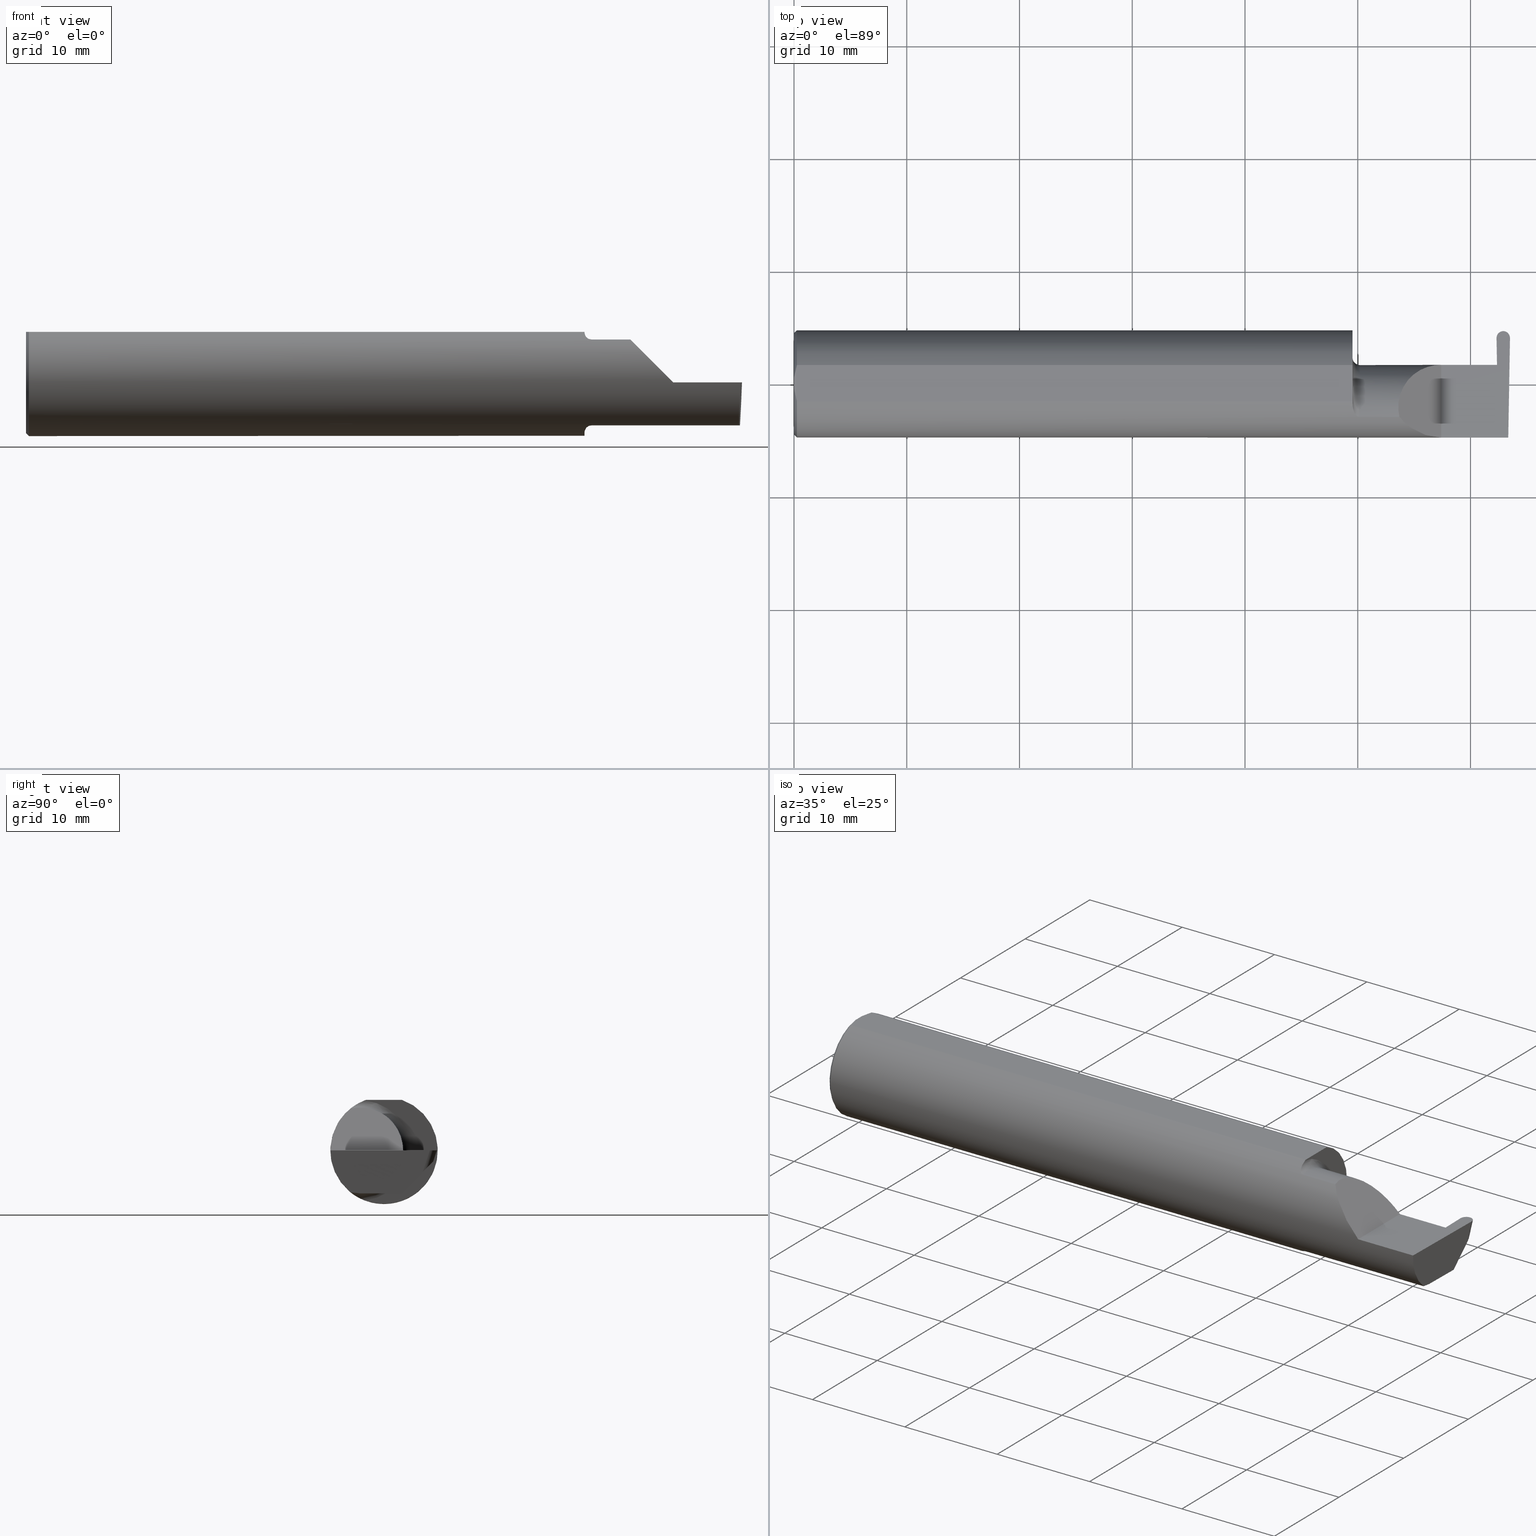
[diagram: canonical four-view strip — front | top / right | iso, engineering-drawing reading convention]
A machine part, canonical four-view strip (front | top / right | iso — engineering-drawing reading convention). The complete STEP part file that produces these views, byte-faithful:
ISO-10303-21;
HEADER;
FILE_DESCRIPTION (( 'STEP AP203' ),
    '1' );
FILE_NAME ('222122-GFR046-8.STEP',
    '2024-06-21T22:57:42',
    ( '' ),
    ( '' ),
    'SwSTEP 2.0',
    'SolidWorks 2022',
    '' );
FILE_SCHEMA (( 'CONFIG_CONTROL_DESIGN' ));
ENDSEC;

DATA;
#1 = VERTEX_POINT ( 'NONE', #477 ) ;
#2 = CARTESIAN_POINT ( 'NONE',  ( 2.450725024758243720, 0.2365161755066116367, 0.02621312396346280743 ) ) ;
#3 = ORIENTED_EDGE ( 'NONE', *, *, #581, .T. ) ;
#4 = LINE ( 'NONE', #442, #279 ) ;
#5 = EDGE_CURVE ( 'NONE', #386, #101, #523, .T. ) ;
#6 = FACE_OUTER_BOUND ( 'NONE', #64, .T. ) ;
#7 = CARTESIAN_POINT ( 'NONE',  ( 2.260000000000000231, 0.06665000000000001479, 6.735557395310446214E-17 ) ) ;
#8 = PRODUCT_DEFINITION ( 'UNKNOWN', '', #44, #330 ) ;
#9 = DIRECTION ( 'NONE',  ( -0.000000000000000000, 1.000000000000000000, -0.000000000000000000 ) ) ;
#10 = VERTEX_POINT ( 'NONE', #533 ) ;
#11 = CARTESIAN_POINT ( 'NONE',  ( 2.459895087900160870, 0.06145200698433272296, -0.1488510445587935549 ) ) ;
#12 = EDGE_CURVE ( 'NONE', #83, #173, #40, .T. ) ;
#13 = COORDINATED_UNIVERSAL_TIME_OFFSET ( 8, 0, .BEHIND. ) ;
#14 = DIRECTION ( 'NONE',  ( 0.000000000000000000, -1.000000000000000000, 0.000000000000000000 ) ) ;
#15 = ORIENTED_EDGE ( 'NONE', *, *, #369, .F. ) ;
#16 = AXIS2_PLACEMENT_3D ( 'NONE', #31, #24, #188 ) ;
#17 = B_SPLINE_CURVE_WITH_KNOTS ( 'NONE', 3,
 ( #687, #192, #413, #580, #301, #636, #397, #141, #358, #405, #531, #76 ),
 .UNSPECIFIED., .F., .F.,
 ( 4, 2, 2, 2, 2, 4 ),
 ( 4.423516731080767705E-05, 0.0004615475116586703792, 0.0008788598560065330814, 0.001296172200354395784, 0.001504828372528326267, 0.001713484544702256968 ),
 .UNSPECIFIED. ) ;
#18 = VECTOR ( 'NONE', #570, 39.37007874015748143 ) ;
#19 = LOCAL_TIME ( 15, 57, 42.00000000000000000, #343 ) ;
#20 = ORIENTED_EDGE ( 'NONE', *, *, #12, .F. ) ;
#21 = PERSON_AND_ORGANIZATION ( #172, #371 ) ;
#22 = CARTESIAN_POINT ( 'NONE',  ( 2.260000000000000231, -0.2500000000000000555, 2.939152317953647352E-17 ) ) ;
#23 = ORIENTED_EDGE ( 'NONE', *, *, #430, .F. ) ;
#24 = DIRECTION ( 'NONE',  ( 1.000000000000000000, 3.394713289407038742E-17, 0.000000000000000000 ) ) ;
#25 = CARTESIAN_POINT ( 'NONE',  ( 2.476480000000000459, 0.1722500154617881696, -0.03805303608136140214 ) ) ;
#26 = EDGE_CURVE ( 'NONE', #470, #412, #154, .T. ) ;
#27 = VERTEX_POINT ( 'NONE', #487 ) ;
#28 = CARTESIAN_POINT ( 'NONE',  ( 2.498023799314527338, 0.1561213079040834895, -0.05418174363906626961 ) ) ;
#29 = AXIS2_PLACEMENT_3D ( 'NONE', #660, #497, #556 ) ;
#30 = VERTEX_POINT ( 'NONE', #363 ) ;
#31 = CARTESIAN_POINT ( 'NONE',  ( 1.949999999999999956, 0.000000000000000000, 0.000000000000000000 ) ) ;
#32 = CARTESIAN_POINT ( 'NONE',  ( 0.009999999999999346217, 0.06325108694718235836, 0.1763499999999999235 ) ) ;
#33 = CARTESIAN_POINT ( 'NONE',  ( 2.472512750841366902, 0.1918129394110904828, 0.09809285817454171941 ) ) ;
#34 = EDGE_CURVE ( 'NONE', #280, #629, #293, .T. ) ;
#35 = ORIENTED_EDGE ( 'NONE', *, *, #137, .F. ) ;
#36 = CARTESIAN_POINT ( 'NONE',  ( 2.460115337567889249, -0.08334999999999999354, -0.1500000000000000500 ) ) ;
#37 = CYLINDRICAL_SURFACE ( 'NONE', #110, 0.02350000000000000352 ) ;
#38 = VERTEX_POINT ( 'NONE', #310 ) ;
#39 = DIRECTION ( 'NONE',  ( -1.000000000000000000, -3.394713289407038742E-17, -0.000000000000000000 ) ) ;
#40 = LINE ( 'NONE', #90, #558 ) ;
#41 = DIRECTION ( 'NONE',  ( -0.7071067811865441310, 0.000000000000000000, -0.7071067811865510144 ) ) ;
#42 = CONICAL_SURFACE ( 'NONE', #627, 0.1773500000000005072, 0.7853981633974551624 ) ;
#43 = CARTESIAN_POINT ( 'NONE',  ( 2.460115337567889249, -0.08334999999999999354, -0.1500000000000000500 ) ) ;
#44 = PRODUCT_DEFINITION_FORMATION_WITH_SPECIFIED_SOURCE ( 'ANY', '', #482, .NOT_KNOWN. ) ;
#45 = DIRECTION ( 'NONE',  ( 1.000000000000000000, 0.000000000000000000, 0.000000000000000000 ) ) ;
#46 = EDGE_CURVE ( 'NONE', #264, #173, #151, .T. ) ;
#47 = B_SPLINE_CURVE_WITH_KNOTS ( 'NONE', 3,
 ( #415, #309, #241, #425 ),
 .UNSPECIFIED., .F., .F.,
 ( 4, 4 ),
 ( 0.009771445421851449736, 0.01092787937989102981 ),
 .UNSPECIFIED. ) ;
#48 = LINE ( 'NONE', #211, #199 ) ;
#49 = DIRECTION ( 'NONE',  ( -3.394713289407038742E-17, 1.000000000000000000, 0.000000000000000000 ) ) ;
#50 = CC_DESIGN_PERSON_AND_ORGANIZATION_ASSIGNMENT ( #21, #568, ( #8 ) ) ;
#51 = VERTEX_POINT ( 'NONE', #428 ) ;
#52 = LINE ( 'NONE', #431, #229 ) ;
#53 = DIRECTION ( 'NONE',  ( -0.01745240643727575397, -0.9998476951563912696, 0.000000000000000000 ) ) ;
#54 = CARTESIAN_POINT ( 'NONE',  ( 2.447424076630286827, 0.06652820251299108867, -0.003487823687207497643 ) ) ;
#55 = DIRECTION ( 'NONE',  ( -1.000000000000000000, 0.000000000000000000, 1.224646799147353947E-16 ) ) ;
#56 = VECTOR ( 'NONE', #521, 39.37007874015748854 ) ;
#57 = CARTESIAN_POINT ( 'NONE',  ( 2.113883229301068312, -0.1172600179964003175, 0.1461167706989304760 ) ) ;
#58 = CARTESIAN_POINT ( 'NONE',  ( 2.499996417790078862, 0.1607195194005952565, 0.000000000000000000 ) ) ;
#59 = EDGE_CURVE ( 'NONE', #396, #93, #319, .T. ) ;
#60 = ORIENTED_EDGE ( 'NONE', *, *, #461, .T. ) ;
#61 = CARTESIAN_POINT ( 'NONE',  ( 1.949999999999999956, 0.1873499999999999055, 0.000000000000000000 ) ) ;
#62 = DIRECTION ( 'NONE',  ( 3.394713289407038742E-17, -1.000000000000000000, 0.000000000000000000 ) ) ;
#63 = CARTESIAN_POINT ( 'NONE',  ( 2.452979680742863433, 0.1597972350660649132, 0.000000000000000000 ) ) ;
#64 = EDGE_LOOP ( 'NONE', ( #116, #455, #620, #403, #510, #384 ) ) ;
#65 = CARTESIAN_POINT ( 'NONE',  ( 2.090221225029926355, -0.01530148607434139371, 0.1697787749700724880 ) ) ;
#66 = ORIENTED_EDGE ( 'NONE', *, *, #317, .F. ) ;
#67 = CARTESIAN_POINT ( 'NONE',  ( 2.499991330919623778, 0.1598853660763216722, 0.0002712393593816879249 ) ) ;
#68 = AXIS2_PLACEMENT_3D ( 'NONE', #641, #41, #249 ) ;
#69 = EDGE_CURVE ( 'NONE', #126, #267, #366, .T. ) ;
#70 = CARTESIAN_POINT ( 'NONE',  ( 1.951843912362378086, -0.08846956905169084395, -0.1652353808078972919 ) ) ;
#71 = EDGE_CURVE ( 'NONE', #598, #27, #410, .T. ) ;
#72 = ORIENTED_EDGE ( 'NONE', *, *, #605, .T. ) ;
#73 = ORIENTED_EDGE ( 'NONE', *, *, #602, .F. ) ;
#74 = PERSON_AND_ORGANIZATION ( #172, #371 ) ;
#75 = DIRECTION ( 'NONE',  ( 0.000000000000000000, 0.000000000000000000, -1.000000000000000000 ) ) ;
#76 = CARTESIAN_POINT ( 'NONE',  ( 1.974999999999999867, -0.1172600179964006506, 0.1461167706989304205 ) ) ;
#77 =( BOUNDED_CURVE ( )  B_SPLINE_CURVE ( 3, ( #184, #630, #132, #520 ),
 .UNSPECIFIED., .F., .F. ) 
 B_SPLINE_CURVE_WITH_KNOTS ( ( 4, 4 ),
 ( 1.570796326794879016, 1.624635715067310082 ),
 .UNSPECIFIED. ) 
 CURVE ( )  GEOMETRIC_REPRESENTATION_ITEM ( )  RATIONAL_B_SPLINE_CURVE ( ( 1.000000000000000000, 0.9997584579429215079, 0.9997584579429215079, 1.000000000000000000 ) ) 
 REPRESENTATION_ITEM ( '' )  );
#78 = EDGE_LOOP ( 'NONE', ( #86, #72, #663, #23, #496, #623, #530, #514, #292 ) ) ;
#79 = CALENDAR_DATE ( 2024, 21, 6 ) ;
#80 = EDGE_CURVE ( 'NONE', #183, #272, #476, .T. ) ;
#81 = PLANE ( 'NONE',  #432 ) ;
#82 = CARTESIAN_POINT ( 'NONE',  ( 1.974999999999999867, -0.1172600179964006090, -0.1461167706989303927 ) ) ;
#83 = VERTEX_POINT ( 'NONE', #11 ) ;
#84 = LINE ( 'NONE', #22, #697 ) ;
#85 = ORIENTED_EDGE ( 'NONE', *, *, #158, .T. ) ;
#86 = ORIENTED_EDGE ( 'NONE', *, *, #500, .F. ) ;
#87 = CARTESIAN_POINT ( 'NONE',  ( 0.000000000000000000, 0.000000000000000000, 0.000000000000000000 ) ) ;
#88 = EDGE_CURVE ( 'NONE', #651, #386, #559, .T. ) ;
#89 = CIRCLE ( 'NONE', #144, 0.1500000000000000500 ) ;
#90 = CARTESIAN_POINT ( 'NONE',  ( 2.454605571778825102, 0.06664999999999998703, 0.000000000000000000 ) ) ;
#91 = CARTESIAN_POINT ( 'NONE',  ( 2.113883229301068312, -0.1172600179964003175, 0.1461167706989304760 ) ) ;
#92 = DIRECTION ( 'NONE',  ( 0.000000000000000000, 0.9510565162951534202, -0.3090169943749480619 ) ) ;
#93 = VERTEX_POINT ( 'NONE', #554 ) ;
#94 = DATE_AND_TIME ( #354, #171 ) ;
#95 = LINE ( 'NONE', #303, #511 ) ;
#96 = VERTEX_POINT ( 'NONE', #222 ) ;
#97 = CARTESIAN_POINT ( 'NONE',  ( 2.452963582209922055, 0.1607195194005952010, 0.000000000000000000 ) ) ;
#98 = ORIENTED_EDGE ( 'NONE', *, *, #522, .F. ) ;
#99 = APPROVAL_ROLE ( '' ) ;
#100 = CARTESIAN_POINT ( 'NONE',  ( 0.000000000000000000, 0.000000000000000000, 0.000000000000000000 ) ) ;
#101 = VERTEX_POINT ( 'NONE', #220 ) ;
#102 = DIRECTION ( 'NONE',  ( 1.000000000000000000, 3.394713289407038742E-17, 0.000000000000000000 ) ) ;
#103 = ORIENTED_EDGE ( 'NONE', *, *, #618, .F. ) ;
#104 = DIRECTION ( 'NONE',  ( 0.9992386149554827179, 0.01744177490282465548, 0.03489949670250104552 ) ) ;
#105 = CARTESIAN_POINT ( 'NONE',  ( 2.454977397848501219, 0.06628460753894979685, -0.01046347106162132459 ) ) ;
#106 = DIRECTION ( 'NONE',  ( 1.000000000000000000, 3.394713289407038742E-17, 0.000000000000000000 ) ) ;
#107 = DIRECTION ( 'NONE',  ( -0.9992386149554827179, 0.01744177490282240728, 0.03489949670250104552 ) ) ;
#108 = ADVANCED_FACE ( 'NONE', ( #612 ), #275, .T. ) ;
#109 = PRODUCT_RELATED_PRODUCT_CATEGORY ( 'detail', '', ( #482 ) ) ;
#110 = AXIS2_PLACEMENT_3D ( 'NONE', #526, #472, #92 ) ;
#111 = CARTESIAN_POINT ( 'NONE',  ( 2.150065971957464850, -0.1623470442677540371, 0.1099340280425340488 ) ) ;
#112 = DIRECTION ( 'NONE',  ( -3.394713289407038742E-17, 1.000000000000000000, 0.000000000000000000 ) ) ;
#113 = SHAPE_DEFINITION_REPRESENTATION ( #365, #203 ) ;
#114 = ADVANCED_FACE ( 'NONE', ( #268 ), #671, .F. ) ;
#115 = CARTESIAN_POINT ( 'NONE',  ( 2.260000000000000231, -0.1873499999999999888, 2.939152317953647352E-17 ) ) ;
#116 = ORIENTED_EDGE ( 'NONE', *, *, #642, .F. ) ;
#117 = DATE_AND_TIME ( #564, #527 ) ;
#118 = CARTESIAN_POINT ( 'NONE',  ( 2.447180481656269446, 0.06628460753897341684, -0.01046347106162249727 ) ) ;
#119 = AXIS2_PLACEMENT_3D ( 'NONE', #196, #45, #191 ) ;
#120 = CIRCLE ( 'NONE', #654, 0.1873499999999999888 ) ;
#121 = ORIENTED_EDGE ( 'NONE', *, *, #71, .F. ) ;
#122 = COORDINATED_UNIVERSAL_TIME_OFFSET ( 8, 0, .BEHIND. ) ;
#123 = ORIENTED_EDGE ( 'NONE', *, *, #46, .F. ) ;
#124 = LINE ( 'NONE', #576, #56 ) ;
#125 = ADVANCED_FACE ( 'NONE', ( #616 ), #329, .T. ) ;
#126 = VERTEX_POINT ( 'NONE', #118 ) ;
#127 =( NAMED_UNIT ( * ) SI_UNIT ( $, .STERADIAN. ) SOLID_ANGLE_UNIT ( ) );
#128 = COORDINATED_UNIVERSAL_TIME_OFFSET ( 8, 0, .BEHIND. ) ;
#129 = CARTESIAN_POINT ( 'NONE',  ( 2.456016969906897884, 0.1354885203010862127, -0.07481453124206377536 ) ) ;
#130 = CC_DESIGN_APPROVAL ( #283, ( #610 ) ) ;
#131 = EDGE_LOOP ( 'NONE', ( #367, #3, #458, #406 ) ) ;
#132 = CARTESIAN_POINT ( 'NONE',  ( 2.476480000000000015, 0.1756450098733829401, -0.02767777025991481274 ) ) ;
#133 = LINE ( 'NONE', #625, #525 ) ;
#134 = ORIENTED_EDGE ( 'NONE', *, *, #88, .F. ) ;
#135 = ORIENTED_EDGE ( 'NONE', *, *, #460, .T. ) ;
#136 = CARTESIAN_POINT ( 'NONE',  ( 2.499980319257137484, 0.1597972350660649132, 0.000000000000000000 ) ) ;
#137 = EDGE_CURVE ( 'NONE', #633, #659, #270, .T. ) ;
#138 = APPROVAL_STATUS ( 'not_yet_approved' ) ;
#139 = ORIENTED_EDGE ( 'NONE', *, *, #215, .T. ) ;
#140 = DIRECTION ( 'NONE',  ( 1.000000000000000000, 0.000000000000000000, -0.000000000000000000 ) ) ;
#141 = CARTESIAN_POINT ( 'NONE',  ( 1.963163223656403389, -0.1119926267047277602, 0.1502091925606062750 ) ) ;
#142 = ADVANCED_FACE ( 'NONE', ( #562 ), #265, .T. ) ;
#143 = CIRCLE ( 'NONE', #466, 0.1749999999999999889 ) ;
#144 = AXIS2_PLACEMENT_3D ( 'NONE', #565, #617, #289 ) ;
#145 = CARTESIAN_POINT ( 'NONE',  ( 2.733184360054361939, -0.08335000000000006293, -0.1500000000000000500 ) ) ;
#146 = ORIENTED_EDGE ( 'NONE', *, *, #5, .F. ) ;
#147 = CARTESIAN_POINT ( 'NONE',  ( 2.490040979592266890, -0.1172600179964006090, -0.1461167706989303927 ) ) ;
#148 = CARTESIAN_POINT ( 'NONE',  ( 2.490599447477928052, 0.1846499999999998420, -1.730980851401792408E-18 ) ) ;
#149 = LINE ( 'NONE', #306, #571 ) ;
#150 = APPLICATION_PROTOCOL_DEFINITION ( 'international standard', 'config_control_design', 1994, #644 ) ;
#151 =( BOUNDED_CURVE ( )  B_SPLINE_CURVE ( 3, ( #43, #209, #603, #105 ),
 .UNSPECIFIED., .F., .F. ) 
 B_SPLINE_CURVE_WITH_KNOTS ( ( 4, 4 ),
 ( 3.176499238629678867, 4.677482395344774169 ),
 .UNSPECIFIED. ) 
 CURVE ( )  GEOMETRIC_REPRESENTATION_ITEM ( )  RATIONAL_B_SPLINE_CURVE ( ( 1.000000000000000000, 0.8209024677461199682, 0.8209024677461199682, 1.000000000000000000 ) ) 
 REPRESENTATION_ITEM ( '' )  );
#152 = PERSON_AND_ORGANIZATION ( #172, #371 ) ;
#153 = CARTESIAN_POINT ( 'NONE',  ( 2.213980000000000281, -0.1172600179964006090, -0.1461167706989303927 ) ) ;
#154 = LINE ( 'NONE', #704, #703 ) ;
#155 = VECTOR ( 'NONE', #164, 39.37007874015748143 ) ;
#156 = CARTESIAN_POINT ( 'NONE',  ( 2.490145048687840479, -0.1061291577212409298, -0.1486999626928446616 ) ) ;
#157 = CARTESIAN_POINT ( 'NONE',  ( 2.490517704308097713, -0.1623470442677541203, -0.1099340280425338823 ) ) ;
#158 = EDGE_CURVE ( 'NONE', #272, #635, #323, .T. ) ;
#159 = CARTESIAN_POINT ( 'NONE',  ( 1.963203859946833552, -0.1120371980050637178, -0.1501764597936560142 ) ) ;
#160 = CARTESIAN_POINT ( 'NONE',  ( 2.493920841729410753, -0.1873499999999999888, 0.000000000000000000 ) ) ;
#161 = CC_DESIGN_PERSON_AND_ORGANIZATION_ASSIGNMENT ( #624, #394, ( #610 ) ) ;
#162 = ORIENTED_EDGE ( 'NONE', *, *, #594, .F. ) ;
#163 = DIRECTION ( 'NONE',  ( 0.03858184836401778312, 0.3087869137032490108, 0.9503484007996426675 ) ) ;
#164 = DIRECTION ( 'NONE',  ( -0.03701368837992397021, -0.7066222423871549863, -0.7066222423871630909 ) ) ;
#165 = EDGE_CURVE ( 'NONE', #27, #412, #626, .T. ) ;
#166 = CARTESIAN_POINT ( 'NONE',  ( 1.949999999999999512, -0.07368234487347193051, -0.1723418180300748115 ) ) ;
#167 = EDGE_LOOP ( 'NONE', ( #667, #691, #675 ) ) ;
#168 = DATE_AND_TIME ( #180, #359 ) ;
#169 = CARTESIAN_POINT ( 'NONE',  ( -0.001039370078740541395, 0.1723030515431495657, -0.03799999999999999906 ) ) ;
#170 = VECTOR ( 'NONE', #408, 39.37007874015747433 ) ;
#171 = LOCAL_TIME ( 15, 57, 42.00000000000000000, #314 ) ;
#172 = PERSON ( 'UNSPECIFIED', 'UNSPECIFIED', 'UNSPECIFIED', ('UNSPECIFIED'), ('UNSPECIFIED'), ('UNSPECIFIED') ) ;
#173 = VERTEX_POINT ( 'NONE', #494 ) ;
#174 = PERSON_AND_ORGANIZATION_ROLE ( 'design_supplier' ) ;
#175 = LINE ( 'NONE', #348, #197 ) ;
#176 = ORIENTED_EDGE ( 'NONE', *, *, #461, .F. ) ;
#177 = EDGE_CURVE ( 'NONE', #83, #396, #269, .T. ) ;
#178 = ORIENTED_EDGE ( 'NONE', *, *, #382, .F. ) ;
#179 =( CONVERSION_BASED_UNIT ( 'INCH', #584 ) LENGTH_UNIT ( ) NAMED_UNIT ( #353 ) );
#180 = CALENDAR_DATE ( 2024, 21, 6 ) ;
#181 = CARTESIAN_POINT ( 'NONE',  ( 1.949999999999999956, -0.06851976604679065053, 0.1743704796142198643 ) ) ;
#182 = CARTESIAN_POINT ( 'NONE',  ( -0.001039370078740541395, 0.1846500000000000363, 0.000000000000000000 ) ) ;
#183 = VERTEX_POINT ( 'NONE', #499 ) ;
#184 = CARTESIAN_POINT ( 'NONE',  ( 2.476480000000000015, 0.1824111880958902976, -0.006890354540110501906 ) ) ;
#185 = FACE_OUTER_BOUND ( 'NONE', #567, .T. ) ;
#186 = EDGE_CURVE ( 'NONE', #1, #633, #4, .T. ) ;
#187 = ORIENTED_EDGE ( 'NONE', *, *, #414, .T. ) ;
#188 = DIRECTION ( 'NONE',  ( 0.000000000000000000, 1.000000000000000000, 0.000000000000000000 ) ) ;
#189 = DIRECTION ( 'NONE',  ( -1.000000000000000000, -0.000000000000000000, -0.000000000000000000 ) ) ;
#190 = ORIENTED_EDGE ( 'NONE', *, *, #80, .F. ) ;
#191 = DIRECTION ( 'NONE',  ( 0.000000000000000000, 0.000000000000000000, -1.000000000000000000 ) ) ;
#192 = CARTESIAN_POINT ( 'NONE',  ( 1.949999999999999956, -0.07367581953296704900, 0.1723443821957854338 ) ) ;
#193 = CC_DESIGN_PERSON_AND_ORGANIZATION_ASSIGNMENT ( #74, #399, ( #44 ) ) ;
#194 = LINE ( 'NONE', #153, #342 ) ;
#195 = EDGE_LOOP ( 'NONE', ( #462, #73, #299, #85, #434, #204, #351, #123, #243, #226 ) ) ;
#196 = CARTESIAN_POINT ( 'NONE',  ( 0.000000000000000000, 0.000000000000000000, 0.000000000000000000 ) ) ;
#197 = VECTOR ( 'NONE', #693, 39.37007874015748143 ) ;
#198 = MECHANICAL_CONTEXT ( 'NONE', #644, 'mechanical' ) ;
#199 = VECTOR ( 'NONE', #661, 39.37007874015748143 ) ;
#200 = ORIENTED_EDGE ( 'NONE', *, *, #242, .T. ) ;
#201 = CARTESIAN_POINT ( 'NONE',  ( 1.949999999999999956, 0.06665000000000001479, 6.735557395310446214E-17 ) ) ;
#202 = EDGE_CURVE ( 'NONE', #470, #237, #489, .T. ) ;
#203 = ADVANCED_BREP_SHAPE_REPRESENTATION ( '222122-GFR046-8', ( #601, #392 ), #491 ) ;
#204 = ORIENTED_EDGE ( 'NONE', *, *, #69, .F. ) ;
#205 = CARTESIAN_POINT ( 'NONE',  ( 0.000000000000000000, 0.000000000000000000, 0.000000000000000000 ) ) ;
#206 = CARTESIAN_POINT ( 'NONE',  ( 2.491901754046578876, -0.1873499999999999610, -0.05781030015605125721 ) ) ;
#207 = DIRECTION ( 'NONE',  ( 0.000000000000000000, 0.000000000000000000, 1.000000000000000000 ) ) ;
#208 = AXIS2_PLACEMENT_3D ( 'NONE', #452, #508, #676 ) ;
#209 = CARTESIAN_POINT ( 'NONE',  ( 2.460012367653796606, -0.0002709026822648648324, -0.1500000000000000500 ) ) ;
#210 = ADVANCED_FACE ( 'NONE', ( #344 ), #356, .T. ) ;
#211 = CARTESIAN_POINT ( 'NONE',  ( 0.000000000000000000, -0.06325108694718235836, 0.1763499999999999235 ) ) ;
#212 = CARTESIAN_POINT ( 'NONE',  ( 0.000000000000000000, 0.01880691362239451242, 0.1763499999999999235 ) ) ;
#213 = CARTESIAN_POINT ( 'NONE',  ( 2.454936200685473136, 0.1561213079040838225, -0.05418174363906588104 ) ) ;
#214 = DIRECTION ( 'NONE',  ( -0.03701368837992554534, 0.7066222423871548752, 0.7066222423871629799 ) ) ;
#215 = EDGE_CURVE ( 'NONE', #331, #422, #516, .T. ) ;
#216 = CARTESIAN_POINT ( 'NONE',  ( 2.472512750841366902, 0.2141627675440266054, 0.09083095880673043576 ) ) ;
#217 = ORIENTED_EDGE ( 'NONE', *, *, #414, .F. ) ;
#218 = CARTESIAN_POINT ( 'NONE',  ( 2.155331797197863608, 0.06665000000000002867, 0.1046682028021359151 ) ) ;
#219 = LINE ( 'NONE', #444, #155 ) ;
#220 = CARTESIAN_POINT ( 'NONE',  ( 2.476759731742398163, 0.1846500000000000363, 0.000000000000000000 ) ) ;
#221 = ORIENTED_EDGE ( 'NONE', *, *, #165, .T. ) ;
#222 = CARTESIAN_POINT ( 'NONE',  ( 2.476200268257601422, 0.1846500000000000363, 0.000000000000000000 ) ) ;
#223 = ORIENTED_EDGE ( 'NONE', *, *, #137, .T. ) ;
#224 = PLANE ( 'NONE',  #383 ) ;
#225 = CARTESIAN_POINT ( 'NONE',  ( 1.958439486659306450, -0.1064616213911156600, -0.1542305641651501857 ) ) ;
#226 = ORIENTED_EDGE ( 'NONE', *, *, #304, .F. ) ;
#227 = EDGE_CURVE ( 'NONE', #695, #51, #297, .T. ) ;
#228 = CC_DESIGN_PERSON_AND_ORGANIZATION_ASSIGNMENT ( #152, #542, ( #482 ) ) ;
#229 = VECTOR ( 'NONE', #322, 39.37007874015748854 ) ;
#230 = ORIENTED_EDGE ( 'NONE', *, *, #369, .T. ) ;
#231 = DIRECTION ( 'NONE',  ( -1.000000000000000000, -3.394713289407038742E-17, -0.000000000000000000 ) ) ;
#232 = VERTEX_POINT ( 'NONE', #347 ) ;
#233 = APPROVAL_STATUS ( 'not_yet_approved' ) ;
#234 = DIRECTION ( 'NONE',  ( 0.9993699743034455407, 0.001238639365660558185, 0.03546999060124557401 ) ) ;
#235 = LINE ( 'NONE', #400, #18 ) ;
#236 = ADVANCED_FACE ( 'NONE', ( #282 ), #404, .F. ) ;
#237 = VERTEX_POINT ( 'NONE', #181 ) ;
#238 = PLANE ( 'NONE',  #271 ) ;
#239 = CARTESIAN_POINT ( 'NONE',  ( 2.489663928990823116, 0.1711396766916337964, -0.03916337485151579617 ) ) ;
#240 = VECTOR ( 'NONE', #696, 39.37007874015748143 ) ;
#241 = CARTESIAN_POINT ( 'NONE',  ( 0.001595548104417217512, -0.03385300050298979679, 0.1763499999999999235 ) ) ;
#242 = EDGE_CURVE ( 'NONE', #10, #93, #77, .T. ) ;
#243 = ORIENTED_EDGE ( 'NONE', *, *, #566, .F. ) ;
#244 = DIRECTION ( 'NONE',  ( 0.000000000000000000, -0.03489949670250104552, -0.9993908270190957621 ) ) ;
#245 = DIRECTION ( 'NONE',  ( -1.000000000000000000, -0.000000000000000000, -0.000000000000000000 ) ) ;
#246 = DIRECTION ( 'NONE',  ( -1.000000000000000000, -0.000000000000000000, -0.000000000000000000 ) ) ;
#247 = ORIENTED_EDGE ( 'NONE', *, *, #560, .F. ) ;
#248 = CARTESIAN_POINT ( 'NONE',  ( 2.499980319257137484, 0.1597972350660649132, 0.000000000000000000 ) ) ;
#249 = DIRECTION ( 'NONE',  ( -0.7071067811865509034, 0.000000000000000000, 0.7071067811865440200 ) ) ;
#250 = ADVANCED_FACE ( 'NONE', ( #686 ), #238, .F. ) ;
#251 = APPROVAL_PERSON_ORGANIZATION ( #468, #678, #99 ) ;
#252 = ORIENTED_EDGE ( 'NONE', *, *, #202, .F. ) ;
#253 = PLANE ( 'NONE',  #653 ) ;
#254 = DIRECTION ( 'NONE',  ( 1.000000000000000000, 0.000000000000000000, 0.000000000000000000 ) ) ;
#255 = ORIENTED_EDGE ( 'NONE', *, *, #186, .F. ) ;
#256 = PLANE ( 'NONE',  #298 ) ;
#257 = ADVANCED_FACE ( 'NONE', ( #484 ), #256, .F. ) ;
#258 = ORIENTED_EDGE ( 'NONE', *, *, #80, .T. ) ;
#259 = CARTESIAN_POINT ( 'NONE',  ( 0.009999999999999346217, 0.06325108694718235836, 0.1763499999999999235 ) ) ;
#260 = AXIS2_PLACEMENT_3D ( 'NONE', #579, #569, #75 ) ;
#261 = CARTESIAN_POINT ( 'NONE',  ( 2.447545874117295739, 0.06664999999999991764, 0.000000000000000000 ) ) ;
#262 = TOROIDAL_SURFACE ( 'NONE', #665, 0.1749999999999999889, 0.02499999999999993894 ) ;
#263 = CYLINDRICAL_SURFACE ( 'NONE', #381, 0.02350000000000000352 ) ;
#264 = VERTEX_POINT ( 'NONE', #36 ) ;
#265 = CYLINDRICAL_SURFACE ( 'NONE', #443, 0.1500000000000000500 ) ;
#266 = LINE ( 'NONE', #216, #479 ) ;
#267 = VERTEX_POINT ( 'NONE', #364 ) ;
#268 = FACE_OUTER_BOUND ( 'NONE', #591, .T. ) ;
#269 = LINE ( 'NONE', #2, #370 ) ;
#270 = CIRCLE ( 'NONE', #597, 0.1773500000000005072 ) ;
#271 = AXIS2_PLACEMENT_3D ( 'NONE', #362, #207, #140 ) ;
#272 = VERTEX_POINT ( 'NONE', #91 ) ;
#273 = CARTESIAN_POINT ( 'NONE',  ( 1.969511795768554174, -0.1163687266324233971, -0.1468371510166789073 ) ) ;
#274 = ORIENTED_EDGE ( 'NONE', *, *, #34, .T. ) ;
#275 = PLANE ( 'NONE',  #649 ) ;
#276 = ADVANCED_FACE ( 'NONE', ( #429 ), #692, .F. ) ;
#277 = EDGE_LOOP ( 'NONE', ( #302, #15, #524, #103, #200 ) ) ;
#278 = CLOSED_SHELL ( 'NONE', ( #210, #257, #529, #350, #503, #125, #276, #546, #672, #142, #108, #250, #424, #114, #337, #688, #236, #447, #512 ) ) ;
#279 = VECTOR ( 'NONE', #9, 39.37007874015748143 ) ;
#280 = VERTEX_POINT ( 'NONE', #147 ) ;
#281 = APPROVAL_ROLE ( '' ) ;
#282 = FACE_OUTER_BOUND ( 'NONE', #437, .T. ) ;
#283 = APPROVAL ( #463, 'UNSPECIFIED' ) ;
#284 = LINE ( 'NONE', #677, #418 ) ;
#285 = ORIENTED_EDGE ( 'NONE', *, *, #382, .T. ) ;
#286 = DATE_TIME_ROLE ( 'classification_date' ) ;
#287 = CARTESIAN_POINT ( 'NONE',  ( 2.452963582209922055, 0.1607195194005952010, 0.000000000000000000 ) ) ;
#288 = EDGE_CURVE ( 'NONE', #635, #267, #648, .T. ) ;
#289 = DIRECTION ( 'NONE',  ( 0.000000000000000000, -1.000000000000000000, 0.000000000000000000 ) ) ;
#290 = EDGE_LOOP ( 'NONE', ( #221, #339, #698, #448 ) ) ;
#291 = DIRECTION ( 'NONE',  ( -0.000000000000000000, 1.000000000000000000, -0.000000000000000000 ) ) ;
#292 = ORIENTED_EDGE ( 'NONE', *, *, #5, .T. ) ;
#293 =( BOUNDED_CURVE ( )  B_SPLINE_CURVE ( 3, ( #595, #157, #206, #320 ),
 .UNSPECIFIED., .F., .F. ) 
 B_SPLINE_CURVE_WITH_KNOTS ( ( 4, 4 ),
 ( 0.2128041086811292559, 1.107331509589577045 ),
 .UNSPECIFIED. ) 
 CURVE ( )  GEOMETRIC_REPRESENTATION_ITEM ( )  RATIONAL_B_SPLINE_CURVE ( ( 1.000000000000000000, 0.9344226172588802060, 0.9344226172588802060, 1.000000000000000000 ) ) 
 REPRESENTATION_ITEM ( '' )  );
#294 = EDGE_LOOP ( 'NONE', ( #377, #35, #285, #583 ) ) ;
#295 = AXIS2_PLACEMENT_3D ( 'NONE', #604, #106, #325 ) ;
#296 = DIRECTION ( 'NONE',  ( 0.000000000000000000, -0.3090169943749481729, -0.9510565162951533091 ) ) ;
#297 = CIRCLE ( 'NONE', #260, 0.1873499999999999888 ) ;
#298 = AXIS2_PLACEMENT_3D ( 'NONE', #357, #427, #244 ) ;
#299 = ORIENTED_EDGE ( 'NONE', *, *, #317, .T. ) ;
#300 = CARTESIAN_POINT ( 'NONE',  ( 2.490297801769516539, -0.09477667630339428606, -0.1500000000000000222 ) ) ;
#301 = CARTESIAN_POINT ( 'NONE',  ( 1.952945243422982369, -0.09312071749437422774, 0.1626553472577906556 ) ) ;
#302 = ORIENTED_EDGE ( 'NONE', *, *, #59, .F. ) ;
#303 = CARTESIAN_POINT ( 'NONE',  ( 1.949999999999998623, 0.06628460753896384117, -0.01046347106175933399 ) ) ;
#304 = EDGE_CURVE ( 'NONE', #280, #422, #420, .T. ) ;
#305 = CARTESIAN_POINT ( 'NONE',  ( 2.500234130889192219, 0.1743380937279880583, -2.910889271442051666E-18 ) ) ;
#306 = CARTESIAN_POINT ( 'NONE',  ( 2.213980000000000281, -0.1172600179964006090, 0.1461167706989303927 ) ) ;
#307 = FACE_OUTER_BOUND ( 'NONE', #78, .T. ) ;
#308 = DIRECTION ( 'NONE',  ( 1.000000000000000000, 0.000000000000000000, 0.000000000000000000 ) ) ;
#309 = CARTESIAN_POINT ( 'NONE',  ( 0.005151108632379595466, -0.04888864921576189376, 0.1763499999999999235 ) ) ;
#310 = CARTESIAN_POINT ( 'NONE',  ( 2.459937291069381082, 0.06030305154315083321, -0.1500000000000000500 ) ) ;
#311 = FACE_OUTER_BOUND ( 'NONE', #388, .T. ) ;
#312 = CARTESIAN_POINT ( 'NONE',  ( 2.500000000000000000, -0.2500000000000000555, 0.000000000000000000 ) ) ;
#313 = VECTOR ( 'NONE', #532, 39.37007874015748143 ) ;
#314 = COORDINATED_UNIVERSAL_TIME_OFFSET ( 8, 0, .BEHIND. ) ;
#315 = ORIENTED_EDGE ( 'NONE', *, *, #242, .F. ) ;
#316 = LINE ( 'NONE', #540, #240 ) ;
#317 = EDGE_CURVE ( 'NONE', #30, #272, #149, .T. ) ;
#318 = CARTESIAN_POINT ( 'NONE',  ( 2.496943030093102145, 0.1354885203010862682, -0.07481453124206371985 ) ) ;
#319 =( BOUNDED_CURVE ( )  B_SPLINE_CURVE ( 3, ( #492, #213, #708, #547 ),
 .UNSPECIFIED., .F., .F. ) 
 B_SPLINE_CURVE_WITH_KNOTS ( ( 4, 4 ),
 ( 4.726241273561299749, 6.249001820764003234 ),
 .UNSPECIFIED. ) 
 CURVE ( )  GEOMETRIC_REPRESENTATION_ITEM ( )  RATIONAL_B_SPLINE_CURVE ( ( 1.000000000000000000, 0.8159229469975374238, 0.8159229469975374238, 1.000000000000000000 ) ) 
 REPRESENTATION_ITEM ( '' )  );
#320 = CARTESIAN_POINT ( 'NONE',  ( 2.493920841729410753, -0.1873499999999999888, 0.000000000000000000 ) ) ;
#321 = FACE_OUTER_BOUND ( 'NONE', #611, .T. ) ;
#322 = DIRECTION ( 'NONE',  ( -0.001239419280281356568, 0.9999992319196288060, 0.000000000000000000 ) ) ;
#323 =( BOUNDED_CURVE ( )  B_SPLINE_CURVE ( 3, ( #57, #65, #218, #375 ),
 .UNSPECIFIED., .F., .F. ) 
 B_SPLINE_CURVE_WITH_KNOTS ( ( 4, 4 ),
 ( 6.055147272130144920, 7.853981633974482790 ),
 .UNSPECIFIED. ) 
 CURVE ( )  GEOMETRIC_REPRESENTATION_ITEM ( )  RATIONAL_B_SPLINE_CURVE ( ( 1.000000000000000000, 0.7480442670255273985, 0.7480442670255273985, 1.000000000000000000 ) ) 
 REPRESENTATION_ITEM ( '' )  );
#324 = CARTESIAN_POINT ( 'NONE',  ( 2.447302279143278358, 0.06640640502598225969, -0.006975647374414995286 ) ) ;
#325 = DIRECTION ( 'NONE',  ( 0.000000000000000000, 1.000000000000000000, 0.000000000000000000 ) ) ;
#326 = ORIENTED_EDGE ( 'NONE', *, *, #522, .T. ) ;
#327 = EDGE_CURVE ( 'NONE', #38, #331, #316, .T. ) ;
#328 = ORIENTED_EDGE ( 'NONE', *, *, #360, .F. ) ;
#329 = PLANE ( 'NONE',  #29 ) ;
#330 = DESIGN_CONTEXT ( 'detailed design', #682, 'design' ) ;
#331 = VERTEX_POINT ( 'NONE', #373 ) ;
#332 = CARTESIAN_POINT ( 'NONE',  ( 2.113883229301068312, -0.1172600179964003175, 0.1461167706989304760 ) ) ;
#333 = AXIS2_PLACEMENT_3D ( 'NONE', #87, #245, #340 ) ;
#334 = ORIENTED_EDGE ( 'NONE', *, *, #360, .T. ) ;
#335 = APPROVAL_DATE_TIME ( #117, #283 ) ;
#336 = DIRECTION ( 'NONE',  ( 0.000000000000000000, 0.000000000000000000, -1.000000000000000000 ) ) ;
#337 = ADVANCED_FACE ( 'NONE', ( #311 ), #253, .F. ) ;
#338 = SECURITY_CLASSIFICATION_LEVEL ( 'unclassified' ) ;
#339 = ORIENTED_EDGE ( 'NONE', *, *, #26, .F. ) ;
#340 = DIRECTION ( 'NONE',  ( 0.000000000000000000, 0.000000000000000000, -1.000000000000000000 ) ) ;
#341 = ORIENTED_EDGE ( 'NONE', *, *, #26, .T. ) ;
#342 = VECTOR ( 'NONE', #638, 39.37007874015748143 ) ;
#343 = COORDINATED_UNIVERSAL_TIME_OFFSET ( 8, 0, .BEHIND. ) ;
#344 = FACE_OUTER_BOUND ( 'NONE', #578, .T. ) ;
#345 = CARTESIAN_POINT ( 'NONE',  ( 0.005155213631852355663, 0.04890080824240217866, 0.1763499999999999235 ) ) ;
#346 = EDGE_LOOP ( 'NONE', ( #669, #341, #600, #178, #255, #98 ) ) ;
#347 = CARTESIAN_POINT ( 'NONE',  ( 2.452979680742863433, 0.1597972350660649132, 0.000000000000000000 ) ) ;
#348 = CARTESIAN_POINT ( 'NONE',  ( 0.000000000000000000, 0.000000000000000000, -0.1773500000000005072 ) ) ;
#349 = ORIENTED_EDGE ( 'NONE', *, *, #71, .T. ) ;
#350 = ADVANCED_FACE ( 'NONE', ( #321 ), #417, .F. ) ;
#351 = ORIENTED_EDGE ( 'NONE', *, *, #581, .F. ) ;
#352 = LINE ( 'NONE', #287, #536 ) ;
#353 = DIMENSIONAL_EXPONENTS ( 1.000000000000000000, 0.000000000000000000, 0.000000000000000000, 0.000000000000000000, 0.000000000000000000, 0.000000000000000000, 0.000000000000000000 ) ;
#354 = CALENDAR_DATE ( 2024, 21, 6 ) ;
#355 = ORIENTED_EDGE ( 'NONE', *, *, #657, .F. ) ;
#356 = CONICAL_SURFACE ( 'NONE', #208, 0.1773500000000005072, 0.7853981633974551624 ) ;
#357 = CARTESIAN_POINT ( 'NONE',  ( 2.454605571778825102, 0.06664999999999998703, 0.000000000000000000 ) ) ;
#358 = CARTESIAN_POINT ( 'NONE',  ( 1.965004157323697376, -0.1137044537483316159, 0.1489098419202428691 ) ) ;
#359 = LOCAL_TIME ( 15, 57, 42.00000000000000000, #13 ) ;
#360 = EDGE_CURVE ( 'NONE', #93, #651, #619, .T. ) ;
#361 = ORIENTED_EDGE ( 'NONE', *, *, #657, .T. ) ;
#362 = CARTESIAN_POINT ( 'NONE',  ( 2.733184360054361939, -0.08335000000000006293, -0.1500000000000000500 ) ) ;
#363 = CARTESIAN_POINT ( 'NONE',  ( 1.974999999999999867, -0.1172600179964006506, 0.1461167706989304205 ) ) ;
#364 = CARTESIAN_POINT ( 'NONE',  ( 2.447545874117295739, 0.06664999999999991764, 0.000000000000000000 ) ) ;
#365 = PRODUCT_DEFINITION_SHAPE ( 'NONE', 'NONE',  #8 ) ;
#366 = B_SPLINE_CURVE_WITH_KNOTS ( 'NONE', 3,
 ( #374, #324, #54, #261 ),
 .UNSPECIFIED., .F., .F.,
 ( 4, 4 ),
 ( 0.000000000000000000, 1.000000000000000000 ),
 .UNSPECIFIED. ) ;
#367 = ORIENTED_EDGE ( 'NONE', *, *, #628, .F. ) ;
#368 = CARTESIAN_POINT ( 'NONE',  ( 2.490497255146305822, -0.08335000000000006293, -0.1500000000000000500 ) ) ;
#369 = EDGE_CURVE ( 'NONE', #232, #396, #124, .T. ) ;
#370 = VECTOR ( 'NONE', #214, 39.37007874015748854 ) ;
#371 = ORGANIZATION ( 'UNSPECIFIED', 'UNSPECIFIED', '' ) ;
#372 = ORIENTED_EDGE ( 'NONE', *, *, #628, .T. ) ;
#373 = CARTESIAN_POINT ( 'NONE',  ( 2.493004728488126265, 0.06030305154315079158, -0.1500000000000000500 ) ) ;
#374 = CARTESIAN_POINT ( 'NONE',  ( 2.447180481656269446, 0.06628460753897341684, -0.01046347106162249727 ) ) ;
#375 = CARTESIAN_POINT ( 'NONE',  ( 2.260000000000000231, 0.06665000000000001479, 6.735557395310446214E-17 ) ) ;
#376 = DIRECTION ( 'NONE',  ( -1.000000000000000000, -3.394713289407038742E-17, -0.000000000000000000 ) ) ;
#377 = ORIENTED_EDGE ( 'NONE', *, *, #460, .F. ) ;
#378 = CARTESIAN_POINT ( 'NONE',  ( 0.000000000000000000, 0.000000000000000000, 0.000000000000000000 ) ) ;
#379 = AXIS2_PLACEMENT_3D ( 'NONE', #312, #436, #55 ) ;
#380 = EDGE_CURVE ( 'NONE', #237, #27, #143, .T. ) ;
#381 = AXIS2_PLACEMENT_3D ( 'NONE', #33, #473, #587 ) ;
#382 = EDGE_CURVE ( 'NONE', #633, #632, #506, .T. ) ;
#383 = AXIS2_PLACEMENT_3D ( 'NONE', #58, #107, #549 ) ;
#384 = ORIENTED_EDGE ( 'NONE', *, *, #215, .F. ) ;
#385 = CARTESIAN_POINT ( 'NONE',  ( 1.972174967710399685, -0.1172600179964005812, -0.1461167706989304760 ) ) ;
#386 = VERTEX_POINT ( 'NONE', #136 ) ;
#387 = CARTESIAN_POINT ( 'NONE',  ( 1.952960551809340917, -0.09317341542745741223, -0.1626248379125196930 ) ) ;
#388 = EDGE_LOOP ( 'NONE', ( #689, #230, #507, #607, #372 ) ) ;
#389 = DATE_AND_TIME ( #79, #19 ) ;
#390 = EDGE_CURVE ( 'NONE', #412, #632, #133, .T. ) ;
#391 = DIRECTION ( 'NONE',  ( 0.000000000000000000, -0.7071067811865433539, -0.7071067811865515695 ) ) ;
#392 = AXIS2_PLACEMENT_3D ( 'NONE', #481, #411, #308 ) ;
#393 = CARTESIAN_POINT ( 'NONE',  ( 0.009999999999999346217, 0.000000000000000000, 0.000000000000000000 ) ) ;
#394 = PERSON_AND_ORGANIZATION_ROLE ( 'classification_officer' ) ;
#395 = DIRECTION ( 'NONE',  ( 0.03547001781079399396, 0.000000000000000000, -0.9993707409347654114 ) ) ;
#396 = VERTEX_POINT ( 'NONE', #129 ) ;
#397 = CARTESIAN_POINT ( 'NONE',  ( 1.958475602106621194, -0.1064978748893405658, 0.1542035505680384166 ) ) ;
#398 = ORIENTED_EDGE ( 'NONE', *, *, #602, .T. ) ;
#399 = PERSON_AND_ORGANIZATION_ROLE ( 'creator' ) ;
#400 = CARTESIAN_POINT ( 'NONE',  ( 2.454605571778825102, 0.06664999999999998703, 0.000000000000000000 ) ) ;
#401 = UNCERTAINTY_MEASURE_WITH_UNIT (LENGTH_MEASURE( 1.000000000000000082E-05 ), #179, 'distance_accuracy_value', 'NONE');
#402 = EDGE_CURVE ( 'NONE', #645, #232, #352, .T. ) ;
#403 = ORIENTED_EDGE ( 'NONE', *, *, #34, .F. ) ;
#404 = PLANE ( 'NONE',  #640 ) ;
#405 = CARTESIAN_POINT ( 'NONE',  ( 1.969481469043492528, -0.1163560528186165510, 0.1468472430636323656 ) ) ;
#406 = ORIENTED_EDGE ( 'NONE', *, *, #430, .T. ) ;
#407 = EDGE_LOOP ( 'NONE', ( #247, #274, #416, #258, #66, #176, #252, #501, #504, #557, #519, #639, #121 ) ) ;
#408 = DIRECTION ( 'NONE',  ( -0.01745240643727576091, -0.9998476951563914916, 0.000000000000000000 ) ) ;
#409 = CARTESIAN_POINT ( 'NONE',  ( 0.000000000000000000, 0.01880691362239451242, 0.1763499999999999235 ) ) ;
#410 = B_SPLINE_CURVE_WITH_KNOTS ( 'NONE', 3,
 ( #658, #385, #273, #664, #159, #225, #446, #387, #70, #668, #166, #502 ),
 .UNSPECIFIED., .F., .F.,
 ( 4, 2, 2, 2, 2, 4 ),
 ( 1.967976973726874814E-07, 0.0002120314145722334523, 0.0004238660314470941797, 0.0008475352651968039251, 0.001271204498946513616, 0.001694873732696223307 ),
 .UNSPECIFIED. ) ;
#411 = DIRECTION ( 'NONE',  ( 0.000000000000000000, 0.000000000000000000, 1.000000000000000000 ) ) ;
#412 = VERTEX_POINT ( 'NONE', #457 ) ;
#413 = CARTESIAN_POINT ( 'NONE',  ( 1.950353553376444671, -0.07868116735658677030, 0.1701139256562800572 ) ) ;
#414 = EDGE_CURVE ( 'NONE', #659, #1, #550, .T. ) ;
#415 = CARTESIAN_POINT ( 'NONE',  ( 0.009999999999999346217, -0.06325108694718235836, 0.1763499999999999235 ) ) ;
#416 = ORIENTED_EDGE ( 'NONE', *, *, #439, .T. ) ;
#417 = PLANE ( 'NONE',  #68 ) ;
#418 = VECTOR ( 'NONE', #464, 39.37007874015748143 ) ;
#419 = CC_DESIGN_DATE_AND_TIME_ASSIGNMENT ( #389, #286, ( #610 ) ) ;
#420 =( BOUNDED_CURVE ( )  B_SPLINE_CURVE ( 3, ( #471, #156, #300, #368 ),
 .UNSPECIFIED., .F., .F. ) 
 B_SPLINE_CURVE_WITH_KNOTS ( ( 4, 4 ),
 ( 0.2354267821558766460, 0.4634648172053196791 ),
 .UNSPECIFIED. ) 
 CURVE ( )  GEOMETRIC_REPRESENTATION_ITEM ( )  RATIONAL_B_SPLINE_CURVE ( ( 1.000000000000000000, 0.9956712472009929815, 0.9956712472009929815, 1.000000000000000000 ) ) 
 REPRESENTATION_ITEM ( '' )  );
#421 = FACE_OUTER_BOUND ( 'NONE', #294, .T. ) ;
#422 = VERTEX_POINT ( 'NONE', #622 ) ;
#423 = PLANE ( 'NONE',  #379 ) ;
#424 = ADVANCED_FACE ( 'NONE', ( #589 ), #81, .F. ) ;
#425 = CARTESIAN_POINT ( 'NONE',  ( 0.000000000000000000, -0.01880691362239451242, 0.1763499999999999235 ) ) ;
#426 = ORIENTED_EDGE ( 'NONE', *, *, #666, .F. ) ;
#427 = DIRECTION ( 'NONE',  ( 9.668203783556934093E-15, -0.9993908270190957621, 0.03489949670250104552 ) ) ;
#428 = CARTESIAN_POINT ( 'NONE',  ( 0.009999999999999346217, 0.000000000000000000, -0.1873499999999999888 ) ) ;
#429 = FACE_OUTER_BOUND ( 'NONE', #561, .T. ) ;
#430 = EDGE_CURVE ( 'NONE', #267, #645, #235, .T. ) ;
#431 = CARTESIAN_POINT ( 'NONE',  ( 2.460115757045640450, -0.08368844675136287437, -0.1500000000000000500 ) ) ;
#432 = AXIS2_PLACEMENT_3D ( 'NONE', #459, #517, #296 ) ;
#433 = VECTOR ( 'NONE', #544, 39.37007874015748143 ) ;
#434 = ORIENTED_EDGE ( 'NONE', *, *, #288, .T. ) ;
#435 = FACE_OUTER_BOUND ( 'NONE', #702, .T. ) ;
#436 = DIRECTION ( 'NONE',  ( -1.224646799147353947E-16, 0.000000000000000000, -1.000000000000000000 ) ) ;
#437 = EDGE_LOOP ( 'NONE', ( #588, #20, #162, #355 ) ) ;
#438 = DIRECTION ( 'NONE',  ( 0.000000000000000000, -0.7071067811865516806, 0.7071067811865434649 ) ) ;
#439 = EDGE_CURVE ( 'NONE', #629, #183, #284, .T. ) ;
#440 = CARTESIAN_POINT ( 'NONE',  ( 2.454605571778825102, 0.06664999999999998703, 0.000000000000000000 ) ) ;
#441 = ORIENTED_EDGE ( 'NONE', *, *, #186, .T. ) ;
#442 = CARTESIAN_POINT ( 'NONE',  ( 0.000000000000000000, 0.1873499999999998500, 0.1763499999999999235 ) ) ;
#443 = AXIS2_PLACEMENT_3D ( 'NONE', #548, #505, #14 ) ;
#444 = CARTESIAN_POINT ( 'NONE',  ( 2.495446507120537838, 0.1069186461560726192, -0.1033844053870776880 ) ) ;
#445 = VECTOR ( 'NONE', #53, 39.37007874015748854 ) ;
#446 = CARTESIAN_POINT ( 'NONE',  ( 1.956304331342286762, -0.1022198306720690231, -0.1570962426853819704 ) ) ;
#447 = ADVANCED_FACE ( 'NONE', ( #185 ), #37, .T. ) ;
#448 = ORIENTED_EDGE ( 'NONE', *, *, #380, .T. ) ;
#449 = CALENDAR_DATE ( 2024, 21, 6 ) ;
#450 = DIRECTION ( 'NONE',  ( 1.000000000000000000, 3.394713289407038742E-17, 0.000000000000000000 ) ) ;
#451 = CARTESIAN_POINT ( 'NONE',  ( 2.473071381531744883, 0.1551305672486518461, -0.09085147220557605874 ) ) ;
#452 = CARTESIAN_POINT ( 'NONE',  ( 0.000000000000000000, 0.000000000000000000, 0.000000000000000000 ) ) ;
#453 = APPROVAL ( #233, 'UNSPECIFIED' ) ;
#454 = VECTOR ( 'NONE', #163, 39.37007874015748854 ) ;
#455 = ORIENTED_EDGE ( 'NONE', *, *, #88, .T. ) ;
#456 = VECTOR ( 'NONE', #662, 39.37007874015748143 ) ;
#457 = CARTESIAN_POINT ( 'NONE',  ( 1.949999999999999956, 0.06325108694718235836, 0.1763499999999999235 ) ) ;
#458 = ORIENTED_EDGE ( 'NONE', *, *, #69, .T. ) ;
#459 = CARTESIAN_POINT ( 'NONE',  ( -0.001039370078740541395, 0.1846500000000000363, 0.000000000000000000 ) ) ;
#460 = EDGE_CURVE ( 'NONE', #659, #51, #175, .T. ) ;
#461 = EDGE_CURVE ( 'NONE', #237, #30, #17, .T. ) ;
#462 = ORIENTED_EDGE ( 'NONE', *, *, #560, .T. ) ;
#463 = APPROVAL_STATUS ( 'not_yet_approved' ) ;
#464 = DIRECTION ( 'NONE',  ( -1.000000000000000000, -0.000000000000000000, -0.000000000000000000 ) ) ;
#465 = ORIENTED_EDGE ( 'NONE', *, *, #380, .F. ) ;
#466 = AXIS2_PLACEMENT_3D ( 'NONE', #467, #231, #690 ) ;
#467 = CARTESIAN_POINT ( 'NONE',  ( 1.949999999999999956, -0.08335000000000000742, 0.000000000000000000 ) ) ;
#468 = PERSON_AND_ORGANIZATION ( #172, #371 ) ;
#469 = CYLINDRICAL_SURFACE ( 'NONE', #478, 0.1873499999999999888 ) ;
#470 = VERTEX_POINT ( 'NONE', #513 ) ;
#471 = CARTESIAN_POINT ( 'NONE',  ( 2.490040979592266890, -0.1172600179964006090, -0.1461167706989303927 ) ) ;
#472 = DIRECTION ( 'NONE',  ( -0.03858184836401778312, -0.3087869137032490663, -0.9503484007996426675 ) ) ;
#473 = DIRECTION ( 'NONE',  ( -0.03858184836401847007, 0.3087869137032490663, 0.9503484007996425564 ) ) ;
#474 = ORIENTED_EDGE ( 'NONE', *, *, #594, .T. ) ;
#475 = DIRECTION ( 'NONE',  ( 1.000000000000000000, 3.394713289407038742E-17, 0.000000000000000000 ) ) ;
#476 =( BOUNDED_CURVE ( )  B_SPLINE_CURVE ( 3, ( #115, #608, #111, #332 ),
 .UNSPECIFIED., .F., .F. ) 
 B_SPLINE_CURVE_WITH_KNOTS ( ( 4, 4 ),
 ( 4.712388980384688786, 5.606916381293139295 ),
 .UNSPECIFIED. ) 
 CURVE ( )  GEOMETRIC_REPRESENTATION_ITEM ( )  RATIONAL_B_SPLINE_CURVE ( ( 1.000000000000000000, 0.9344226172588797619, 0.9344226172588797619, 1.000000000000000000 ) ) 
 REPRESENTATION_ITEM ( '' )  );
#477 = CARTESIAN_POINT ( 'NONE',  ( 0.000000000000000000, -0.01880691362239451242, 0.1763499999999999235 ) ) ;
#478 = AXIS2_PLACEMENT_3D ( 'NONE', #205, #246, #646 ) ;
#479 = VECTOR ( 'NONE', #490, 39.37007874015748854 ) ;
#480 = VECTOR ( 'NONE', #577, 39.37007874015748854 ) ;
#481 = CARTESIAN_POINT ( 'NONE',  ( 0.000000000000000000, 0.000000000000000000, 0.000000000000000000 ) ) ;
#482 = PRODUCT ( '222122-GFR046-8', '222122-GFR046-8', '', ( #198 ) ) ;
#483 = ORIENTED_EDGE ( 'NONE', *, *, #177, .T. ) ;
#484 = FACE_OUTER_BOUND ( 'NONE', #131, .T. ) ;
#485 = DIRECTION ( 'NONE',  ( 0.000000000000000000, 0.000000000000000000, -1.000000000000000000 ) ) ;
#486 = EDGE_CURVE ( 'NONE', #183, #635, #84, .T. ) ;
#487 = CARTESIAN_POINT ( 'NONE',  ( 1.949999999999999956, -0.06851976604679065053, -0.1743704796142198643 ) ) ;
#488 = DIRECTION ( 'NONE',  ( -0.03549161113179515048, 0.03487750912278131388, 0.9987611851171729338 ) ) ;
#489 = CIRCLE ( 'NONE', #16, 0.1873499999999999888 ) ;
#490 = DIRECTION ( 'NONE',  ( -0.03858184836401846313, 0.3087869137032490108, 0.9503484007996424454 ) ) ;
#491 =( GEOMETRIC_REPRESENTATION_CONTEXT ( 3 ) GLOBAL_UNCERTAINTY_ASSIGNED_CONTEXT ( ( #401 ) ) GLOBAL_UNIT_ASSIGNED_CONTEXT ( ( #179, #515, #127 ) ) REPRESENTATION_CONTEXT ( 'NONE', 'WORKASPACE' ) );
#492 = CARTESIAN_POINT ( 'NONE',  ( 2.456016969906897884, 0.1354885203010862127, -0.07481453124206377536 ) ) ;
#493 = FACE_OUTER_BOUND ( 'NONE', #277, .T. ) ;
#494 = CARTESIAN_POINT ( 'NONE',  ( 2.454977397848501219, 0.06628460753894979685, -0.01046347106162132459 ) ) ;
#495 = CARTESIAN_POINT ( 'NONE',  ( 0.009999999999999346217, -0.06325108694718235836, 0.1763499999999999235 ) ) ;
#496 = ORIENTED_EDGE ( 'NONE', *, *, #288, .F. ) ;
#497 = DIRECTION ( 'NONE',  ( 0.000000000000000000, 0.000000000000000000, 1.000000000000000000 ) ) ;
#498 = LINE ( 'NONE', #707, #456 ) ;
#499 = CARTESIAN_POINT ( 'NONE',  ( 2.260000000000000231, -0.1873499999999999888, 2.939152317953647352E-17 ) ) ;
#500 = EDGE_CURVE ( 'NONE', #96, #101, #683, .T. ) ;
#501 = ORIENTED_EDGE ( 'NONE', *, *, #652, .F. ) ;
#502 = CARTESIAN_POINT ( 'NONE',  ( 1.949999999999999956, -0.06851976604679065053, -0.1743704796142198643 ) ) ;
#503 = ADVANCED_FACE ( 'NONE', ( #307 ), #423, .F. ) ;
#504 = ORIENTED_EDGE ( 'NONE', *, *, #227, .T. ) ;
#505 = DIRECTION ( 'NONE',  ( -1.000000000000000000, -3.394713289407038742E-17, -0.000000000000000000 ) ) ;
#506 = B_SPLINE_CURVE_WITH_KNOTS ( 'NONE', 3,
 ( #409, #634, #345, #32 ),
 .UNSPECIFIED., .F., .F.,
 ( 4, 4 ),
 ( 0.01188664626022267051, 0.01304646959483758001 ),
 .UNSPECIFIED. ) ;
#507 = ORIENTED_EDGE ( 'NONE', *, *, #177, .F. ) ;
#508 = DIRECTION ( 'NONE',  ( 1.000000000000000000, 0.000000000000000000, 0.000000000000000000 ) ) ;
#509 = CARTESIAN_POINT ( 'NONE',  ( 2.476200268257601422, 0.1846500000000000363, 0.000000000000000000 ) ) ;
#510 = ORIENTED_EDGE ( 'NONE', *, *, #304, .T. ) ;
#511 = VECTOR ( 'NONE', #39, 39.37007874015748143 ) ;
#512 = ADVANCED_FACE ( 'NONE', ( #493 ), #263, .T. ) ;
#513 = CARTESIAN_POINT ( 'NONE',  ( 1.949999999999999956, -0.06325108694718283020, 0.1763499999999999235 ) ) ;
#514 = ORIENTED_EDGE ( 'NONE', *, *, #614, .F. ) ;
#515 =( NAMED_UNIT ( * ) PLANE_ANGLE_UNIT ( ) SI_UNIT ( $, .RADIAN. ) );
#516 = LINE ( 'NONE', #575, #170 ) ;
#517 = DIRECTION ( 'NONE',  ( 0.000000000000000000, -0.9510565162951534202, 0.3090169943749482284 ) ) ;
#518 = LINE ( 'NONE', #545, #445 ) ;
#519 = ORIENTED_EDGE ( 'NONE', *, *, #390, .F. ) ;
#520 = CARTESIAN_POINT ( 'NONE',  ( 2.476480000000000459, 0.1722500154617881696, -0.03805303608136140214 ) ) ;
#521 = DIRECTION ( 'NONE',  ( 0.03858184836401847007, -0.3087869137032490108, -0.9503484007996424454 ) ) ;
#522 = EDGE_CURVE ( 'NONE', #695, #1, #47, .T. ) ;
#523 =( BOUNDED_CURVE ( )  B_SPLINE_CURVE ( 3, ( #248, #305, #148, #647 ),
 .UNSPECIFIED., .F., .T. ) 
 B_SPLINE_CURVE_WITH_KNOTS ( ( 4, 4 ),
 ( 1.683182027770901534, 3.259781963246008996 ),
 .UNSPECIFIED. ) 
 CURVE ( )  GEOMETRIC_REPRESENTATION_ITEM ( )  RATIONAL_B_SPLINE_CURVE ( ( 1.000000000000000000, 0.8033679476376978101, 0.8033679476376978101, 1.000000000000000000 ) ) 
 REPRESENTATION_ITEM ( '' )  );
#524 = ORIENTED_EDGE ( 'NONE', *, *, #605, .F. ) ;
#525 = VECTOR ( 'NONE', #189, 39.37007874015748143 ) ;
#526 = CARTESIAN_POINT ( 'NONE',  ( 2.473071381531744883, 0.1327807391157157235, -0.08358957283776477509 ) ) ;
#527 = LOCAL_TIME ( 15, 57, 42.00000000000000000, #122 ) ;
#528 = FACE_OUTER_BOUND ( 'NONE', #407, .T. ) ;
#529 = ADVANCED_FACE ( 'NONE', ( #528 ), #469, .T. ) ;
#530 = ORIENTED_EDGE ( 'NONE', *, *, #439, .F. ) ;
#531 = CARTESIAN_POINT ( 'NONE',  ( 1.972161949849307927, -0.1172600179964061184, 0.1461167706989260351 ) ) ;
#532 = DIRECTION ( 'NONE',  ( -1.000000000000000000, -0.000000000000000000, -0.000000000000000000 ) ) ;
#533 = CARTESIAN_POINT ( 'NONE',  ( 2.476480000000000015, 0.1824111880958902976, -0.006890354540110501906 ) ) ;
#534 = DIRECTION ( 'NONE',  ( 0.03490480639812536257, 0.000000000000000000, -0.9993906415863165194 ) ) ;
#535 = CARTESIAN_POINT ( 'NONE',  ( 2.454167022061946923, 0.2173950921581846718, 0.007092040615035606621 ) ) ;
#536 = VECTOR ( 'NONE', #585, 39.37007874015748143 ) ;
#537 = CC_DESIGN_SECURITY_CLASSIFICATION ( #610, ( #44 ) ) ;
#538 = CARTESIAN_POINT ( 'NONE',  ( 1.974999999999999867, -0.08334999999999999354, 0.000000000000000000 ) ) ;
#539 = ORIENTED_EDGE ( 'NONE', *, *, #158, .F. ) ;
#540 = CARTESIAN_POINT ( 'NONE',  ( -0.001039370078740541395, 0.06030305154315079158, -0.1500000000000000500 ) ) ;
#541 = CARTESIAN_POINT ( 'NONE',  ( 0.000000000000000000, 0.000000000000000000, -0.1773500000000005072 ) ) ;
#542 = PERSON_AND_ORGANIZATION_ROLE ( 'design_owner' ) ;
#543 = ORIENTED_EDGE ( 'NONE', *, *, #486, .T. ) ;
#544 = DIRECTION ( 'NONE',  ( -0.03858184836401777618, -0.3087869137032490663, -0.9503484007996426675 ) ) ;
#545 = CARTESIAN_POINT ( 'NONE',  ( 2.499996417790078862, 0.1607195194005952565, 0.000000000000000000 ) ) ;
#546 = ADVANCED_FACE ( 'NONE', ( #421 ), #42, .T. ) ;
#547 = CARTESIAN_POINT ( 'NONE',  ( 2.476480000000000459, 0.1722500154617881696, -0.03805303608136140214 ) ) ;
#548 = CARTESIAN_POINT ( 'NONE',  ( 1.949999999999999956, -0.08335000000000000742, 0.000000000000000000 ) ) ;
#549 = DIRECTION ( 'NONE',  ( 0.03490480639812536257, 0.000000000000000000, 0.9993906415863165194 ) ) ;
#550 = CIRCLE ( 'NONE', #333, 0.1773500000000005072 ) ;
#551 = CARTESIAN_POINT ( 'NONE',  ( 2.452725869110807366, 0.1743380937279880860, 1.998493923184369948E-17 ) ) ;
#552 = APPROVAL_PERSON_ORGANIZATION ( #621, #453, #281 ) ;
#553 = CC_DESIGN_PERSON_AND_ORGANIZATION_ASSIGNMENT ( #574, #174, ( #44 ) ) ;
#554 = CARTESIAN_POINT ( 'NONE',  ( 2.476480000000000459, 0.1722500154617881696, -0.03805303608136140214 ) ) ;
#555 =( BOUNDED_CURVE ( )  B_SPLINE_CURVE ( 3, ( #509, #582, #551, #63 ),
 .UNSPECIFIED., .F., .F. ) 
 B_SPLINE_CURVE_WITH_KNOTS ( ( 4, 4 ),
 ( 6.164995997523367244, 7.741595932998476925 ),
 .UNSPECIFIED. ) 
 CURVE ( )  GEOMETRIC_REPRESENTATION_ITEM ( )  RATIONAL_B_SPLINE_CURVE ( ( 1.000000000000000000, 0.8033679476376971440, 0.8033679476376971440, 1.000000000000000000 ) ) 
 REPRESENTATION_ITEM ( '' )  );
#556 = DIRECTION ( 'NONE',  ( 1.000000000000000000, 0.000000000000000000, -0.000000000000000000 ) ) ;
#557 = ORIENTED_EDGE ( 'NONE', *, *, #700, .T. ) ;
#558 = VECTOR ( 'NONE', #488, 39.37007874015748143 ) ;
#559 = LINE ( 'NONE', #67, #454 ) ;
#560 = EDGE_CURVE ( 'NONE', #280, #598, #194, .T. ) ;
#561 = EDGE_LOOP ( 'NONE', ( #441, #223, #187 ) ) ;
#562 = FACE_OUTER_BOUND ( 'NONE', #195, .T. ) ;
#563 = ORIENTED_EDGE ( 'NONE', *, *, #327, .T. ) ;
#564 = CALENDAR_DATE ( 2024, 21, 6 ) ;
#565 = CARTESIAN_POINT ( 'NONE',  ( 1.974999999999999867, -0.08335000000000000742, 0.000000000000000000 ) ) ;
#566 = EDGE_CURVE ( 'NONE', #422, #264, #599, .T. ) ;
#567 = EDGE_LOOP ( 'NONE', ( #134, #328, #315, #426, #146 ) ) ;
#568 = PERSON_AND_ORGANIZATION_ROLE ( 'creator' ) ;
#569 = DIRECTION ( 'NONE',  ( 1.000000000000000000, 0.000000000000000000, 0.000000000000000000 ) ) ;
#570 = DIRECTION ( 'NONE',  ( 1.000000000000000000, 9.674096982053045718E-15, -0.000000000000000000 ) ) ;
#571 = VECTOR ( 'NONE', #475, 39.37007874015748143 ) ;
#572 = APPROVAL_PERSON_ORGANIZATION ( #613, #283, #615 ) ;
#573 = ORIENTED_EDGE ( 'NONE', *, *, #642, .T. ) ;
#574 = PERSON_AND_ORGANIZATION ( #172, #371 ) ;
#575 = CARTESIAN_POINT ( 'NONE',  ( 2.490571174359867967, -0.07911517109126284253, -0.1500000000000000500 ) ) ;
#576 = CARTESIAN_POINT ( 'NONE',  ( 2.452968669080377140, 0.1598853660763216167, 0.0002712393593816680298 ) ) ;
#577 = DIRECTION ( 'NONE',  ( -0.02596452850600339604, 0.7068683906002054540, 0.7068683906002135586 ) ) ;
#578 = EDGE_LOOP ( 'NONE', ( #217, #135, #637, #326 ) ) ;
#579 = CARTESIAN_POINT ( 'NONE',  ( 0.009999999999999346217, 0.000000000000000000, 0.000000000000000000 ) ) ;
#580 = CARTESIAN_POINT ( 'NONE',  ( 1.951829077486400443, -0.08839624499054650475, 0.1652742498708037744 ) ) ;
#581 = EDGE_CURVE ( 'NONE', #173, #126, #95, .T. ) ;
#582 = CARTESIAN_POINT ( 'NONE',  ( 2.462360552522071089, 0.1846499999999998420, 1.880503081180344446E-17 ) ) ;
#583 = ORIENTED_EDGE ( 'NONE', *, *, #700, .F. ) ;
#584 = LENGTH_MEASURE_WITH_UNIT ( LENGTH_MEASURE( 0.02539999999999999897 ), #680 );
#585 = DIRECTION ( 'NONE',  ( -0.01745240643727800564, 0.9998476951563912696, -0.000000000000000000 ) ) ;
#586 = CC_DESIGN_DATE_AND_TIME_ASSIGNMENT ( #685, #681, ( #8 ) ) ;
#587 = DIRECTION ( 'NONE',  ( 0.000000000000000000, -0.9510565162951534202, 0.3090169943749480619 ) ) ;
#588 = ORIENTED_EDGE ( 'NONE', *, *, #46, .T. ) ;
#589 = FACE_OUTER_BOUND ( 'NONE', #167, .T. ) ;
#590 = CC_DESIGN_APPROVAL ( #678, ( #8 ) ) ;
#591 = EDGE_LOOP ( 'NONE', ( #483, #684, #334, #573, #592, #474 ) ) ;
#592 = ORIENTED_EDGE ( 'NONE', *, *, #327, .F. ) ;
#593 = DIRECTION ( 'NONE',  ( 1.000000000000000000, -0.000000000000000000, -0.000000000000000000 ) ) ;
#594 = EDGE_CURVE ( 'NONE', #38, #83, #643, .T. ) ;
#595 = CARTESIAN_POINT ( 'NONE',  ( 2.490040979592266890, -0.1172600179964006090, -0.1461167706989303927 ) ) ;
#596 = APPLICATION_PROTOCOL_DEFINITION ( 'international standard', 'config_control_design', 1994, #682 ) ;
#597 = AXIS2_PLACEMENT_3D ( 'NONE', #378, #656, #336 ) ;
#598 = VERTEX_POINT ( 'NONE', #82 ) ;
#599 = LINE ( 'NONE', #145, #313 ) ;
#600 = ORIENTED_EDGE ( 'NONE', *, *, #390, .T. ) ;
#601 = MANIFOLD_SOLID_BREP ( 'Radii', #278 ) ;
#602 = EDGE_CURVE ( 'NONE', #30, #598, #89, .T. ) ;
#603 = CARTESIAN_POINT ( 'NONE',  ( 2.457926070388992468, 0.06048930266824081858, -0.09334019187383281457 ) ) ;
#604 = CARTESIAN_POINT ( 'NONE',  ( 1.949999999999999956, 0.000000000000000000, 0.000000000000000000 ) ) ;
#605 = EDGE_CURVE ( 'NONE', #96, #232, #555, .T. ) ;
#606 = AXIS2_PLACEMENT_3D ( 'NONE', #169, #438, #391 ) ;
#607 = ORIENTED_EDGE ( 'NONE', *, *, #12, .T. ) ;
#608 = CARTESIAN_POINT ( 'NONE',  ( 2.202189699843948301, -0.1873500000000000443, 0.05781030015605120170 ) ) ;
#609 = VECTOR ( 'NONE', #593, 39.37007874015748143 ) ;
#610 = SECURITY_CLASSIFICATION ( '', '', #338 ) ;
#611 = EDGE_LOOP ( 'NONE', ( #539, #190, #543 ) ) ;
#612 = FACE_OUTER_BOUND ( 'NONE', #290, .T. ) ;
#613 = PERSON_AND_ORGANIZATION ( #172, #371 ) ;
#614 = EDGE_CURVE ( 'NONE', #386, #629, #518, .T. ) ;
#615 = APPROVAL_ROLE ( '' ) ;
#616 = FACE_OUTER_BOUND ( 'NONE', #346, .T. ) ;
#617 = DIRECTION ( 'NONE',  ( -1.000000000000000000, -3.394713289407038742E-17, -0.000000000000000000 ) ) ;
#618 = EDGE_CURVE ( 'NONE', #10, #96, #266, .T. ) ;
#619 =( BOUNDED_CURVE ( )  B_SPLINE_CURVE ( 3, ( #25, #239, #28, #631 ),
 .UNSPECIFIED., .F., .F. ) 
 B_SPLINE_CURVE_WITH_KNOTS ( ( 4, 4 ),
 ( 3.175776140005400983, 4.698536687208077822 ),
 .UNSPECIFIED. ) 
 CURVE ( )  GEOMETRIC_REPRESENTATION_ITEM ( )  RATIONAL_B_SPLINE_CURVE ( ( 1.000000000000000000, 0.8159229469975436411, 0.8159229469975436411, 1.000000000000000000 ) ) 
 REPRESENTATION_ITEM ( '' )  );
#620 = ORIENTED_EDGE ( 'NONE', *, *, #614, .T. ) ;
#621 = PERSON_AND_ORGANIZATION ( #172, #371 ) ;
#622 = CARTESIAN_POINT ( 'NONE',  ( 2.490497255146305822, -0.08335000000000006293, -0.1500000000000000500 ) ) ;
#623 = ORIENTED_EDGE ( 'NONE', *, *, #486, .F. ) ;
#624 = PERSON_AND_ORGANIZATION ( #172, #371 ) ;
#625 = CARTESIAN_POINT ( 'NONE',  ( 0.000000000000000000, 0.06325108694718235836, 0.1763499999999999235 ) ) ;
#626 = CIRCLE ( 'NONE', #295, 0.1873499999999999888 ) ;
#627 = AXIS2_PLACEMENT_3D ( 'NONE', #100, #650, #694 ) ;
#628 = EDGE_CURVE ( 'NONE', #173, #645, #498, .T. ) ;
#629 = VERTEX_POINT ( 'NONE', #160 ) ;
#630 = CARTESIAN_POINT ( 'NONE',  ( 2.476480000000000015, 0.1790328857325878265, -0.01728770010724663478 ) ) ;
#631 = CARTESIAN_POINT ( 'NONE',  ( 2.496943030093102145, 0.1354885203010862682, -0.07481453124206371985 ) ) ;
#632 = VERTEX_POINT ( 'NONE', #259 ) ;
#633 = VERTEX_POINT ( 'NONE', #212 ) ;
#634 = CARTESIAN_POINT ( 'NONE',  ( 0.001616639753276218755, 0.03405189565400963680, 0.1763499999999999235 ) ) ;
#635 = VERTEX_POINT ( 'NONE', #7 ) ;
#636 = CARTESIAN_POINT ( 'NONE',  ( 1.956287624083519416, -0.1021858045380144991, 0.1571187174372875306 ) ) ;
#637 = ORIENTED_EDGE ( 'NONE', *, *, #227, .F. ) ;
#638 = DIRECTION ( 'NONE',  ( -1.000000000000000000, -3.394713289407038742E-17, -0.000000000000000000 ) ) ;
#639 = ORIENTED_EDGE ( 'NONE', *, *, #165, .F. ) ;
#640 = AXIS2_PLACEMENT_3D ( 'NONE', #673, #234, #395 ) ;
#641 = CARTESIAN_POINT ( 'NONE',  ( 2.260000000000000231, -0.2500000000000000555, 2.939152317953647352E-17 ) ) ;
#642 = EDGE_CURVE ( 'NONE', #651, #331, #219, .T. ) ;
#643 = LINE ( 'NONE', #535, #480 ) ;
#644 = APPLICATION_CONTEXT ( 'configuration controlled 3d designs of mechanical parts and assemblies' ) ;
#645 = VERTEX_POINT ( 'NONE', #440 ) ;
#646 = DIRECTION ( 'NONE',  ( 0.000000000000000000, 0.000000000000000000, 1.000000000000000000 ) ) ;
#647 = CARTESIAN_POINT ( 'NONE',  ( 2.476759731742398163, 0.1846500000000000363, 0.000000000000000000 ) ) ;
#648 = LINE ( 'NONE', #201, #705 ) ;
#649 = AXIS2_PLACEMENT_3D ( 'NONE', #61, #450, #112 ) ;
#650 = DIRECTION ( 'NONE',  ( 1.000000000000000000, 0.000000000000000000, 0.000000000000000000 ) ) ;
#651 = VERTEX_POINT ( 'NONE', #318 ) ;
#652 = EDGE_CURVE ( 'NONE', #695, #470, #48, .T. ) ;
#653 = AXIS2_PLACEMENT_3D ( 'NONE', #97, #104, #534 ) ;
#654 = AXIS2_PLACEMENT_3D ( 'NONE', #393, #254, #485 ) ;
#655 = LINE ( 'NONE', #451, #433 ) ;
#656 = DIRECTION ( 'NONE',  ( -1.000000000000000000, -0.000000000000000000, -0.000000000000000000 ) ) ;
#657 = EDGE_CURVE ( 'NONE', #264, #38, #52, .T. ) ;
#658 = CARTESIAN_POINT ( 'NONE',  ( 1.974999999999999867, -0.1172600179964006090, -0.1461167706989303927 ) ) ;
#659 = VERTEX_POINT ( 'NONE', #541 ) ;
#660 = CARTESIAN_POINT ( 'NONE',  ( 2.876828993045917215, 0.1873499999999998500, 0.1763499999999999235 ) ) ;
#661 = DIRECTION ( 'NONE',  ( 1.000000000000000000, 0.000000000000000000, 0.000000000000000000 ) ) ;
#662 = DIRECTION ( 'NONE',  ( -0.03549161113179515048, 0.03487750912278131388, 0.9987611851171729338 ) ) ;
#663 = ORIENTED_EDGE ( 'NONE', *, *, #402, .F. ) ;
#664 = CARTESIAN_POINT ( 'NONE',  ( 1.965028532764137914, -0.1137241120808234474, -0.1488947809299404901 ) ) ;
#665 = AXIS2_PLACEMENT_3D ( 'NONE', #538, #376, #62 ) ;
#666 = EDGE_CURVE ( 'NONE', #101, #10, #655, .T. ) ;
#667 = ORIENTED_EDGE ( 'NONE', *, *, #666, .T. ) ;
#668 = CARTESIAN_POINT ( 'NONE',  ( 1.950358271039143832, -0.07873626113568080176, -0.1700887912276895508 ) ) ;
#669 = ORIENTED_EDGE ( 'NONE', *, *, #652, .T. ) ;
#670 = APPROVAL_DATE_TIME ( #168, #453 ) ;
#671 = PLANE ( 'NONE',  #606 ) ;
#672 = ADVANCED_FACE ( 'NONE', ( #435 ), #262, .F. ) ;
#673 = CARTESIAN_POINT ( 'NONE',  ( 2.460605367617270112, -2.397261968859201176, -0.08300305144819924985 ) ) ;
#674 = LOCAL_TIME ( 15, 57, 42.00000000000000000, #128 ) ;
#675 = ORIENTED_EDGE ( 'NONE', *, *, #500, .T. ) ;
#676 = DIRECTION ( 'NONE',  ( 0.000000000000000000, 0.000000000000000000, -1.000000000000000000 ) ) ;
#677 = CARTESIAN_POINT ( 'NONE',  ( 3.749399456654646757E-32, -0.1873499999999999610, 3.061616997868383634E-16 ) ) ;
#678 = APPROVAL ( #138, 'UNSPECIFIED' ) ;
#679 = ORIENTED_EDGE ( 'NONE', *, *, #566, .T. ) ;
#680 =( LENGTH_UNIT ( ) NAMED_UNIT ( * ) SI_UNIT ( $, .METRE. ) );
#681 = DATE_TIME_ROLE ( 'creation_date' ) ;
#682 = APPLICATION_CONTEXT ( 'configuration controlled 3d designs of mechanical parts and assemblies' ) ;
#683 = LINE ( 'NONE', #182, #609 ) ;
#684 = ORIENTED_EDGE ( 'NONE', *, *, #59, .T. ) ;
#685 = DATE_AND_TIME ( #449, #674 ) ;
#686 = FACE_OUTER_BOUND ( 'NONE', #699, .T. ) ;
#687 = CARTESIAN_POINT ( 'NONE',  ( 1.949999999999999956, -0.06851976604679065053, 0.1743704796142198643 ) ) ;
#688 = ADVANCED_FACE ( 'NONE', ( #6 ), #224, .F. ) ;
#689 = ORIENTED_EDGE ( 'NONE', *, *, #402, .T. ) ;
#690 = DIRECTION ( 'NONE',  ( 0.000000000000000000, -1.000000000000000000, 0.000000000000000000 ) ) ;
#691 = ORIENTED_EDGE ( 'NONE', *, *, #618, .T. ) ;
#692 = PLANE ( 'NONE',  #119 ) ;
#693 = DIRECTION ( 'NONE',  ( 0.7071067811865426878, 0.000000000000000000, -0.7071067811865523467 ) ) ;
#694 = DIRECTION ( 'NONE',  ( 0.000000000000000000, 0.000000000000000000, -1.000000000000000000 ) ) ;
#695 = VERTEX_POINT ( 'NONE', #495 ) ;
#696 = DIRECTION ( 'NONE',  ( 1.000000000000000000, -0.000000000000000000, -0.000000000000000000 ) ) ;
#697 = VECTOR ( 'NONE', #291, 39.37007874015748143 ) ;
#698 = ORIENTED_EDGE ( 'NONE', *, *, #202, .T. ) ;
#699 = EDGE_LOOP ( 'NONE', ( #679, #361, #563, #139 ) ) ;
#700 = EDGE_CURVE ( 'NONE', #51, #632, #120, .T. ) ;
#701 = APPROVAL_DATE_TIME ( #94, #678 ) ;
#702 = EDGE_LOOP ( 'NONE', ( #60, #398, #349, #465 ) ) ;
#703 = VECTOR ( 'NONE', #49, 39.37007874015748143 ) ;
#704 = CARTESIAN_POINT ( 'NONE',  ( 1.949999999999999956, 0.1873499999999998222, 0.1763499999999999235 ) ) ;
#705 = VECTOR ( 'NONE', #102, 39.37007874015748143 ) ;
#706 = CC_DESIGN_APPROVAL ( #453, ( #44 ) ) ;
#707 = CARTESIAN_POINT ( 'NONE',  ( 2.454605571778825102, 0.06664999999999998703, 0.000000000000000000 ) ) ;
#708 = CARTESIAN_POINT ( 'NONE',  ( 2.463296071009176913, 0.1711396766916342960, -0.03916337485151524106 ) ) ;
ENDSEC;
END-ISO-10303-21;
